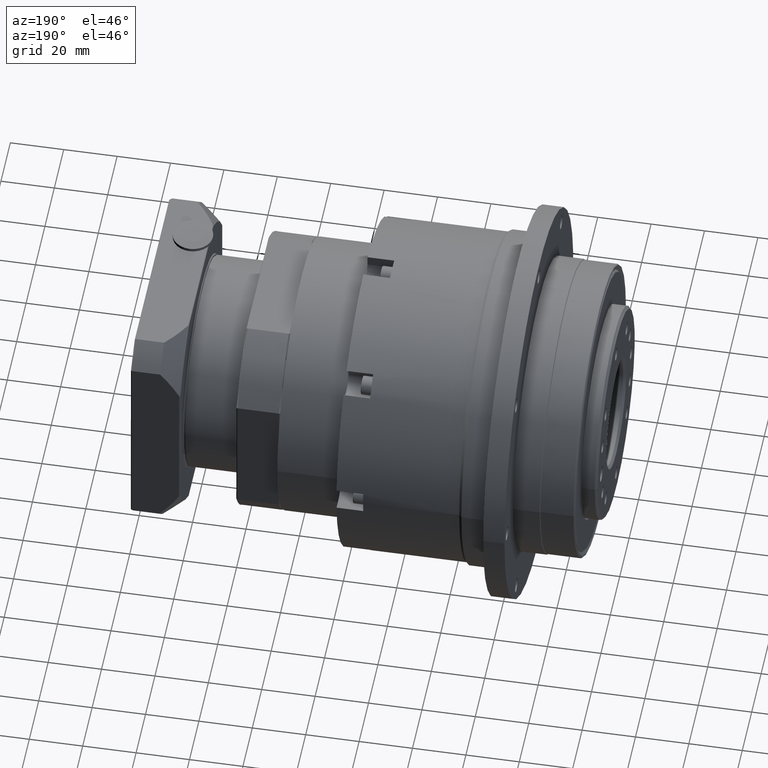
[diagram: clean part render]
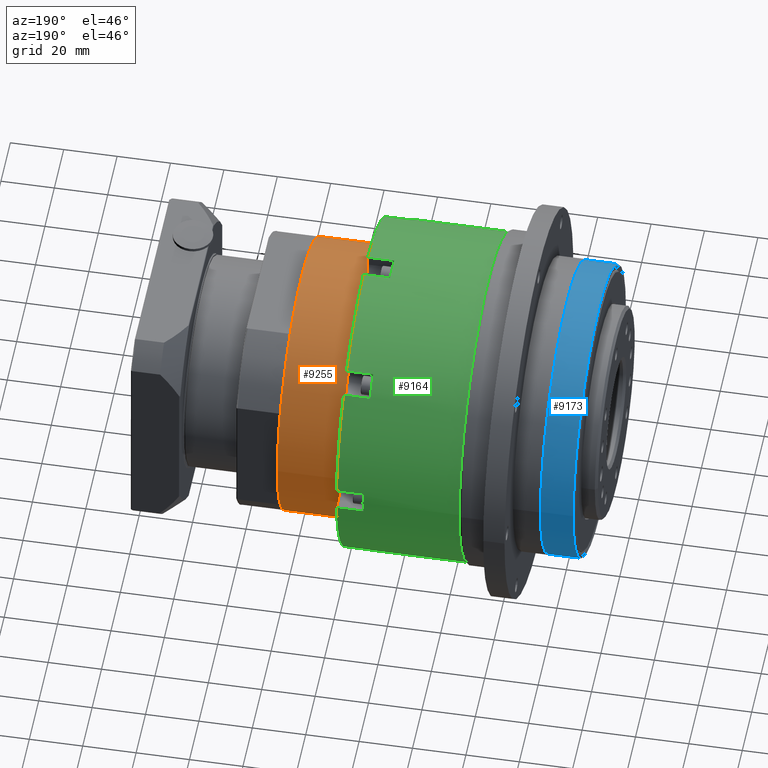
[diagram: same view with three faces highlighted in distinct colors, each labeled with its STEP entity id]
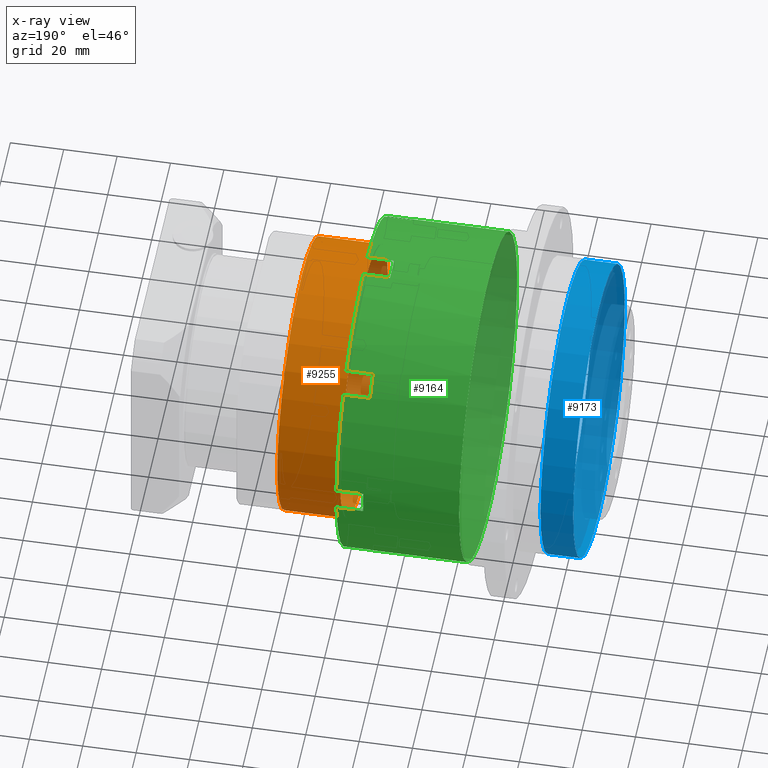
[diagram: x-ray of the same camera — body ghosted, the three highlighted faces saturated]
A machine part, auxiliary view with three faces highlighted in distinct colors.
The next image is the same camera in x-ray (body ghosted, the three faces saturated) — at least one of them is partly hidden behind the body in this view.
Their STEP definitions:

[orange] entity #9255 — the highlighted cylindrical surface (bore or boss wall) has radius 51 mm, axis along (1, -0, 0).
#1797=FACE_BOUND('',#3229,.T.);
#2342=FACE_OUTER_BOUND('',#3228,.T.);
#3228=EDGE_LOOP('',(#7578));
#3229=EDGE_LOOP('',(#7579));
#3791=CIRCLE('',#10123,51.);
#3893=CIRCLE('',#10317,51.);
#4485=VERTEX_POINT('',#15536);
#4619=VERTEX_POINT('',#15928);
#5502=EDGE_CURVE('',#4485,#4485,#3791,.T.);
#5668=EDGE_CURVE('',#4619,#4619,#3893,.T.);
#7578=ORIENTED_EDGE('',*,*,#5502,.F.);
#7579=ORIENTED_EDGE('',*,*,#5668,.F.);
#8269=CYLINDRICAL_SURFACE('',#10316,51.);
#9255=ADVANCED_FACE('',(#2342,#1797),#8269,.T.);
#10123=AXIS2_PLACEMENT_3D('',#15537,#12153,#12154);
#10316=AXIS2_PLACEMENT_3D('',#15927,#12603,#12604);
#10317=AXIS2_PLACEMENT_3D('',#15929,#12605,#12606);
#12153=DIRECTION('center_axis',(1.,-2.70046632271815E-15,1.9707606311247E-16));
#12154=DIRECTION('ref_axis',(1.97271274764041E-16,7.22883173358092E-5,-0.9999999973872));
#12603=DIRECTION('center_axis',(1.,-2.70046632271815E-15,1.9707606311247E-16));
#12604=DIRECTION('ref_axis',(2.70045206936538E-15,0.9999999973872,7.22883173358092E-5));
#12605=DIRECTION('center_axis',(-1.,2.70046632271815E-15,-1.9707606311247E-16));
#12606=DIRECTION('ref_axis',(-2.70045206936538E-15,-0.9999999973872,-7.22883173356255E-5));
#15536=CARTESIAN_POINT('',(0.862257164342749,101.974390526118,19.2707401434766));
#15537=CARTESIAN_POINT('Origin',(0.862257164342612,50.9743906593711,19.2670534392925));
#15927=CARTESIAN_POINT('Origin',(-11.1377428356574,50.9743906593712,19.2670534392925));
#15928=CARTESIAN_POINT('',(-22.6377428356573,101.974390526118,19.2707401434766));
#15929=CARTESIAN_POINT('Origin',(-22.6377428356574,50.9743906593712,19.2670534392925));

[blue] entity #9173 — the highlighted cylindrical surface (bore or boss wall) has radius 54.75 mm, axis along (1, 0, 0).
#1741=FACE_BOUND('',#3091,.T.);
#2260=FACE_OUTER_BOUND('',#3090,.T.);
#3090=EDGE_LOOP('',(#7344));
#3091=EDGE_LOOP('',(#7345));
#3831=CIRCLE('',#10171,54.75);
#3834=CIRCLE('',#10176,54.75);
#4541=VERTEX_POINT('',#15656);
#4544=VERTEX_POINT('',#15664);
#5558=EDGE_CURVE('',#4541,#4541,#3831,.T.);
#5561=EDGE_CURVE('',#4544,#4544,#3834,.T.);
#7344=ORIENTED_EDGE('',*,*,#5558,.F.);
#7345=ORIENTED_EDGE('',*,*,#5561,.F.);
#8235=CYLINDRICAL_SURFACE('',#10175,54.75);
#9173=ADVANCED_FACE('',(#2260,#1741),#8235,.T.);
#10171=AXIS2_PLACEMENT_3D('',#15657,#12265,#12266);
#10175=AXIS2_PLACEMENT_3D('',#15663,#12273,#12274);
#10176=AXIS2_PLACEMENT_3D('',#15665,#12275,#12276);
#12265=DIRECTION('center_axis',(1.,3.88576431534471E-16,1.33663550825114E-15));
#12266=DIRECTION('ref_axis',(1.33660741522239E-15,7.22883173358185E-5,-0.999999997387199));
#12273=DIRECTION('center_axis',(1.,3.88576431534471E-16,1.33663550825114E-15));
#12274=DIRECTION('ref_axis',(-3.88673053650981E-16,0.9999999973872,7.22883173358185E-5));
#12275=DIRECTION('center_axis',(-1.,-3.88576431534471E-16,-1.33663550825114E-15));
#12276=DIRECTION('ref_axis',(3.88673053650981E-16,-0.9999999973872,-7.22883173356348E-5));
#15656=CARTESIAN_POINT('',(-98.3877428356575,105.724390516323,19.2710112246665));
#15657=CARTESIAN_POINT('Origin',(-98.3877428356574,50.9743906593734,19.2670534392924));
#15663=CARTESIAN_POINT('Origin',(-104.762742835657,50.9743906593734,19.2670534392923));
#15664=CARTESIAN_POINT('',(-110.637742835657,105.724390516323,19.2710112246665));
#15665=CARTESIAN_POINT('Origin',(-110.637742835657,50.9743906593734,19.2670534392923));

[green] entity #9164 — the highlighted cylindrical surface (bore or boss wall) has radius 61.5 mm, axis along (1, 0, 0).
#651=LINE('',#15541,#1078);
#652=LINE('',#15545,#1079);
#653=LINE('',#15549,#1080);
#654=LINE('',#15553,#1081);
#655=LINE('',#15557,#1082);
#656=LINE('',#15561,#1083);
#657=LINE('',#15565,#1084);
#658=LINE('',#15569,#1085);
#659=LINE('',#15573,#1086);
#660=LINE('',#15577,#1087);
#661=LINE('',#15581,#1088);
#662=LINE('',#15585,#1089);
#663=LINE('',#15589,#1090);
#664=LINE('',#15593,#1091);
#665=LINE('',#15597,#1092);
#666=LINE('',#15601,#1093);
#1078=VECTOR('',#12157,10.);
#1079=VECTOR('',#12160,10.);
#1080=VECTOR('',#12163,10.);
#1081=VECTOR('',#12166,10.);
#1082=VECTOR('',#12169,10.);
#1083=VECTOR('',#12172,10.);
#1084=VECTOR('',#12175,10.);
#1085=VECTOR('',#12178,10.);
#1086=VECTOR('',#12181,10.);
#1087=VECTOR('',#12184,10.);
#1088=VECTOR('',#12187,10.);
#1089=VECTOR('',#12190,10.);
#1090=VECTOR('',#12193,10.);
#1091=VECTOR('',#12196,10.);
#1092=VECTOR('',#12199,10.);
#1093=VECTOR('',#12202,10.);
#1716=FACE_BOUND('',#3057,.T.);
#2251=FACE_OUTER_BOUND('',#3056,.T.);
#3056=EDGE_LOOP('',(#7279,#7280,#7281,#7282,#7283,#7284,#7285,#7286,#7287,
#7288,#7289,#7290,#7291,#7292,#7293,#7294,#7295,#7296,#7297,#7298,#7299,
#7300,#7301,#7302,#7303,#7304,#7305,#7306,#7307,#7308,#7309,#7310));
#3057=EDGE_LOOP('',(#7311));
#3792=CIRCLE('',#10125,61.5);
#3793=CIRCLE('',#10126,61.5);
#3794=CIRCLE('',#10127,61.5);
#3795=CIRCLE('',#10128,61.5);
#3796=CIRCLE('',#10129,61.5);
#3797=CIRCLE('',#10130,61.5);
#3798=CIRCLE('',#10131,61.5);
#3799=CIRCLE('',#10132,61.5);
#3800=CIRCLE('',#10133,61.5);
#3801=CIRCLE('',#10134,61.5);
#3802=CIRCLE('',#10135,61.5);
#3803=CIRCLE('',#10136,61.5);
#3804=CIRCLE('',#10137,61.5);
#3805=CIRCLE('',#10138,61.5);
#3806=CIRCLE('',#10139,61.5);
#3807=CIRCLE('',#10140,61.5);
#3808=CIRCLE('',#10141,61.5);
#4486=VERTEX_POINT('',#15539);
#4487=VERTEX_POINT('',#15540);
#4488=VERTEX_POINT('',#15542);
#4489=VERTEX_POINT('',#15544);
#4490=VERTEX_POINT('',#15546);
#4491=VERTEX_POINT('',#15548);
#4492=VERTEX_POINT('',#15550);
#4493=VERTEX_POINT('',#15552);
#4494=VERTEX_POINT('',#15554);
#4495=VERTEX_POINT('',#15556);
#4496=VERTEX_POINT('',#15558);
#4497=VERTEX_POINT('',#15560);
#4498=VERTEX_POINT('',#15562);
#4499=VERTEX_POINT('',#15564);
#4500=VERTEX_POINT('',#15566);
#4501=VERTEX_POINT('',#15568);
#4502=VERTEX_POINT('',#15570);
#4503=VERTEX_POINT('',#15572);
#4504=VERTEX_POINT('',#15574);
#4505=VERTEX_POINT('',#15576);
#4506=VERTEX_POINT('',#15578);
#4507=VERTEX_POINT('',#15580);
#4508=VERTEX_POINT('',#15582);
#4509=VERTEX_POINT('',#15584);
#4510=VERTEX_POINT('',#15586);
#4511=VERTEX_POINT('',#15588);
#4512=VERTEX_POINT('',#15590);
#4513=VERTEX_POINT('',#15592);
#4514=VERTEX_POINT('',#15594);
#4515=VERTEX_POINT('',#15596);
#4516=VERTEX_POINT('',#15598);
#4517=VERTEX_POINT('',#15600);
#4518=VERTEX_POINT('',#15603);
#5503=EDGE_CURVE('',#4486,#4487,#651,.T.);
#5504=EDGE_CURVE('',#4488,#4487,#3792,.T.);
#5505=EDGE_CURVE('',#4488,#4489,#652,.T.);
#5506=EDGE_CURVE('',#4489,#4490,#3793,.T.);
#5507=EDGE_CURVE('',#4490,#4491,#653,.T.);
#5508=EDGE_CURVE('',#4492,#4491,#3794,.T.);
#5509=EDGE_CURVE('',#4492,#4493,#654,.T.);
#5510=EDGE_CURVE('',#4493,#4494,#3795,.T.);
#5511=EDGE_CURVE('',#4494,#4495,#655,.T.);
#5512=EDGE_CURVE('',#4496,#4495,#3796,.T.);
#5513=EDGE_CURVE('',#4496,#4497,#656,.T.);
#5514=EDGE_CURVE('',#4497,#4498,#3797,.T.);
#5515=EDGE_CURVE('',#4498,#4499,#657,.T.);
#5516=EDGE_CURVE('',#4500,#4499,#3798,.T.);
#5517=EDGE_CURVE('',#4500,#4501,#658,.T.);
#5518=EDGE_CURVE('',#4501,#4502,#3799,.T.);
#5519=EDGE_CURVE('',#4502,#4503,#659,.T.);
#5520=EDGE_CURVE('',#4504,#4503,#3800,.T.);
#5521=EDGE_CURVE('',#4504,#4505,#660,.T.);
#5522=EDGE_CURVE('',#4505,#4506,#3801,.T.);
#5523=EDGE_CURVE('',#4506,#4507,#661,.T.);
#5524=EDGE_CURVE('',#4508,#4507,#3802,.T.);
#5525=EDGE_CURVE('',#4508,#4509,#662,.T.);
#5526=EDGE_CURVE('',#4509,#4510,#3803,.T.);
#5527=EDGE_CURVE('',#4510,#4511,#663,.T.);
#5528=EDGE_CURVE('',#4512,#4511,#3804,.T.);
#5529=EDGE_CURVE('',#4512,#4513,#664,.T.);
#5530=EDGE_CURVE('',#4513,#4514,#3805,.T.);
#5531=EDGE_CURVE('',#4514,#4515,#665,.T.);
#5532=EDGE_CURVE('',#4516,#4515,#3806,.T.);
#5533=EDGE_CURVE('',#4516,#4517,#666,.T.);
#5534=EDGE_CURVE('',#4517,#4486,#3807,.T.);
#5535=EDGE_CURVE('',#4518,#4518,#3808,.T.);
#7279=ORIENTED_EDGE('',*,*,#5503,.T.);
#7280=ORIENTED_EDGE('',*,*,#5504,.F.);
#7281=ORIENTED_EDGE('',*,*,#5505,.T.);
#7282=ORIENTED_EDGE('',*,*,#5506,.T.);
#7283=ORIENTED_EDGE('',*,*,#5507,.T.);
#7284=ORIENTED_EDGE('',*,*,#5508,.F.);
#7285=ORIENTED_EDGE('',*,*,#5509,.T.);
#7286=ORIENTED_EDGE('',*,*,#5510,.T.);
#7287=ORIENTED_EDGE('',*,*,#5511,.T.);
#7288=ORIENTED_EDGE('',*,*,#5512,.F.);
#7289=ORIENTED_EDGE('',*,*,#5513,.T.);
#7290=ORIENTED_EDGE('',*,*,#5514,.T.);
#7291=ORIENTED_EDGE('',*,*,#5515,.T.);
#7292=ORIENTED_EDGE('',*,*,#5516,.F.);
#7293=ORIENTED_EDGE('',*,*,#5517,.T.);
#7294=ORIENTED_EDGE('',*,*,#5518,.T.);
#7295=ORIENTED_EDGE('',*,*,#5519,.T.);
#7296=ORIENTED_EDGE('',*,*,#5520,.F.);
#7297=ORIENTED_EDGE('',*,*,#5521,.T.);
#7298=ORIENTED_EDGE('',*,*,#5522,.T.);
#7299=ORIENTED_EDGE('',*,*,#5523,.T.);
#7300=ORIENTED_EDGE('',*,*,#5524,.F.);
#7301=ORIENTED_EDGE('',*,*,#5525,.T.);
#7302=ORIENTED_EDGE('',*,*,#5526,.T.);
#7303=ORIENTED_EDGE('',*,*,#5527,.T.);
#7304=ORIENTED_EDGE('',*,*,#5528,.F.);
#7305=ORIENTED_EDGE('',*,*,#5529,.T.);
#7306=ORIENTED_EDGE('',*,*,#5530,.T.);
#7307=ORIENTED_EDGE('',*,*,#5531,.T.);
#7308=ORIENTED_EDGE('',*,*,#5532,.F.);
#7309=ORIENTED_EDGE('',*,*,#5533,.T.);
#7310=ORIENTED_EDGE('',*,*,#5534,.T.);
#7311=ORIENTED_EDGE('',*,*,#5535,.T.);
#8231=CYLINDRICAL_SURFACE('',#10124,61.5);
#9164=ADVANCED_FACE('',(#2251,#1716),#8231,.T.);
#10124=AXIS2_PLACEMENT_3D('',#15538,#12155,#12156);
#10125=AXIS2_PLACEMENT_3D('',#15543,#12158,#12159);
#10126=AXIS2_PLACEMENT_3D('',#15547,#12161,#12162);
#10127=AXIS2_PLACEMENT_3D('',#15551,#12164,#12165);
#10128=AXIS2_PLACEMENT_3D('',#15555,#12167,#12168);
#10129=AXIS2_PLACEMENT_3D('',#15559,#12170,#12171);
#10130=AXIS2_PLACEMENT_3D('',#15563,#12173,#12174);
#10131=AXIS2_PLACEMENT_3D('',#15567,#12176,#12177);
#10132=AXIS2_PLACEMENT_3D('',#15571,#12179,#12180);
#10133=AXIS2_PLACEMENT_3D('',#15575,#12182,#12183);
#10134=AXIS2_PLACEMENT_3D('',#15579,#12185,#12186);
#10135=AXIS2_PLACEMENT_3D('',#15583,#12188,#12189);
#10136=AXIS2_PLACEMENT_3D('',#15587,#12191,#12192);
#10137=AXIS2_PLACEMENT_3D('',#15591,#12194,#12195);
#10138=AXIS2_PLACEMENT_3D('',#15595,#12197,#12198);
#10139=AXIS2_PLACEMENT_3D('',#15599,#12200,#12201);
#10140=AXIS2_PLACEMENT_3D('',#15602,#12203,#12204);
#10141=AXIS2_PLACEMENT_3D('',#15604,#12205,#12206);
#12155=DIRECTION('center_axis',(1.,3.88576431534471E-16,1.33663550825114E-15));
#12156=DIRECTION('ref_axis',(-3.88673053650981E-16,0.9999999973872,7.22883173358185E-5));
#12157=DIRECTION('',(1.,-2.70046632271815E-15,1.9707606311247E-16));
#12158=DIRECTION('center_axis',(1.,-2.70046632271815E-15,1.9707606311247E-16));
#12159=DIRECTION('ref_axis',(1.97271274764041E-16,7.22883173358092E-5,-0.9999999973872));
#12160=DIRECTION('',(-1.,2.70046632271815E-15,-1.9707606311247E-16));
#12161=DIRECTION('center_axis',(-1.,2.70046632271815E-15,-1.9707606311247E-16));
#12162=DIRECTION('ref_axis',(2.70045206936538E-15,0.9999999973872,7.22883173358092E-5));
#12163=DIRECTION('',(1.,-2.70046632271815E-15,1.9707606311247E-16));
#12164=DIRECTION('center_axis',(1.,-2.70046632271815E-15,1.9707606311247E-16));
#12165=DIRECTION('ref_axis',(1.97271274764041E-16,7.22883173358092E-5,-0.9999999973872));
#12166=DIRECTION('',(-1.,2.70046632271815E-15,-1.9707606311247E-16));
#12167=DIRECTION('center_axis',(-1.,2.70046632271815E-15,-1.9707606311247E-16));
#12168=DIRECTION('ref_axis',(2.70045206936538E-15,0.9999999973872,7.22883173358092E-5));
#12169=DIRECTION('',(1.,-2.70046632271815E-15,1.9707606311247E-16));
#12170=DIRECTION('center_axis',(1.,-2.70046632271815E-15,1.9707606311247E-16));
#12171=DIRECTION('ref_axis',(1.97271274764041E-16,7.22883173358092E-5,-0.9999999973872));
#12172=DIRECTION('',(-1.,2.70046632271815E-15,-1.9707606311247E-16));
#12173=DIRECTION('center_axis',(-1.,2.70046632271815E-15,-1.9707606311247E-16));
#12174=DIRECTION('ref_axis',(2.70045206936538E-15,0.9999999973872,7.22883173358092E-5));
#12175=DIRECTION('',(1.,-2.70046632271815E-15,1.9707606311247E-16));
#12176=DIRECTION('center_axis',(1.,-2.70046632271815E-15,1.9707606311247E-16));
#12177=DIRECTION('ref_axis',(1.97271274764041E-16,7.22883173358092E-5,-0.9999999973872));
#12178=DIRECTION('',(-1.,2.70046632271815E-15,-1.9707606311247E-16));
#12179=DIRECTION('center_axis',(-1.,2.70046632271815E-15,-1.9707606311247E-16));
#12180=DIRECTION('ref_axis',(2.70045206936538E-15,0.9999999973872,7.22883173358092E-5));
#12181=DIRECTION('',(1.,-2.70046632271815E-15,1.9707606311247E-16));
#12182=DIRECTION('center_axis',(1.,-2.70046632271815E-15,1.9707606311247E-16));
#12183=DIRECTION('ref_axis',(1.97271274764041E-16,7.22883173358092E-5,-0.9999999973872));
#12184=DIRECTION('',(-1.,2.70046632271815E-15,-1.9707606311247E-16));
#12185=DIRECTION('center_axis',(-1.,2.70046632271815E-15,-1.9707606311247E-16));
#12186=DIRECTION('ref_axis',(2.70045206936538E-15,0.9999999973872,7.22883173358092E-5));
#12187=DIRECTION('',(1.,-2.70046632271815E-15,1.9707606311247E-16));
#12188=DIRECTION('center_axis',(1.,-2.70046632271815E-15,1.9707606311247E-16));
#12189=DIRECTION('ref_axis',(1.97271274764041E-16,7.22883173358092E-5,-0.9999999973872));
#12190=DIRECTION('',(-1.,2.70046632271815E-15,-1.9707606311247E-16));
#12191=DIRECTION('center_axis',(-1.,2.70046632271815E-15,-1.9707606311247E-16));
#12192=DIRECTION('ref_axis',(2.70045206936538E-15,0.9999999973872,7.22883173358092E-5));
#12193=DIRECTION('',(1.,-2.70046632271815E-15,1.9707606311247E-16));
#12194=DIRECTION('center_axis',(1.,-2.70046632271815E-15,1.9707606311247E-16));
#12195=DIRECTION('ref_axis',(1.97271274764041E-16,7.22883173358092E-5,-0.9999999973872));
#12196=DIRECTION('',(-1.,2.70046632271815E-15,-1.9707606311247E-16));
#12197=DIRECTION('center_axis',(-1.,2.70046632271815E-15,-1.9707606311247E-16));
#12198=DIRECTION('ref_axis',(2.70045206936538E-15,0.9999999973872,7.22883173358092E-5));
#12199=DIRECTION('',(1.,-2.70046632271815E-15,1.9707606311247E-16));
#12200=DIRECTION('center_axis',(1.,-2.70046632271815E-15,1.9707606311247E-16));
#12201=DIRECTION('ref_axis',(1.97271274764041E-16,7.22883173358092E-5,-0.9999999973872));
#12202=DIRECTION('',(-1.,2.70046632271815E-15,-1.9707606311247E-16));
#12203=DIRECTION('center_axis',(-1.,2.70046632271815E-15,-1.9707606311247E-16));
#12204=DIRECTION('ref_axis',(2.70045206936538E-15,0.9999999973872,7.22883173358092E-5));
#12205=DIRECTION('center_axis',(1.,3.88576431534471E-16,1.33663550825114E-15));
#12206=DIRECTION('ref_axis',(1.33660741522239E-15,7.22883173358185E-5,-0.9999999973872));
#15538=CARTESIAN_POINT('Origin',(-55.6377428356574,50.9743906593734,19.2670534392924));
#15539=CARTESIAN_POINT('',(-33.1377428356573,91.1662721236891,-27.282518678593));
#15540=CARTESIAN_POINT('',(-23.1377428356573,91.1662721236891,-27.282518678593));
#15541=CARTESIAN_POINT('',(-32.6377428356573,91.1662721236891,-27.282518678593));
#15542=CARTESIAN_POINT('',(-23.1377428356574,55.478824462032,-42.0677660038057));
#15543=CARTESIAN_POINT('Origin',(-23.1377428356574,50.9743906593712,19.2670534392925));
#15544=CARTESIAN_POINT('',(-33.1377428356574,55.478824462032,-42.0677660038057));
#15545=CARTESIAN_POINT('',(-32.6377428356574,55.478824462032,-42.0677660038057));
#15546=CARTESIAN_POINT('',(-33.1377428356574,46.4788244855472,-42.0684165986617));
#15547=CARTESIAN_POINT('Origin',(-33.1377428356574,50.9743906593712,19.2670534392925));
#15548=CARTESIAN_POINT('',(-23.1377428356574,46.4788244855472,-42.0684165986617));
#15549=CARTESIAN_POINT('',(-32.6377428356574,46.4788244855472,-42.0684165986617));
#15550=CARTESIAN_POINT('',(-23.1377428356575,10.7892395955714,-27.2883289990421));
#15551=CARTESIAN_POINT('Origin',(-23.1377428356574,50.9743906593712,19.2670534392925));
#15552=CARTESIAN_POINT('',(-33.1377428356575,10.7892395955714,-27.2883289990421));
#15553=CARTESIAN_POINT('',(-32.6377428356575,10.7892395955714,-27.2883289990421));
#15554=CARTESIAN_POINT('',(-33.1377428356575,4.42481854148573,-20.9248280250254));
#15555=CARTESIAN_POINT('Origin',(-33.1377428356574,50.9743906593712,19.2670534392925));
#15556=CARTESIAN_POINT('',(-23.1377428356575,4.4248185414857,-20.9248280250254));
#15557=CARTESIAN_POINT('',(-32.6377428356575,4.42481854148574,-20.9248280250254));
#15558=CARTESIAN_POINT('',(-23.1377428356576,-10.3604287837269,14.7626196366317));
#15559=CARTESIAN_POINT('Origin',(-23.1377428356574,50.9743906593712,19.2670534392925));
#15560=CARTESIAN_POINT('',(-33.1377428356576,-10.3604287837269,14.7626196366317));
#15561=CARTESIAN_POINT('',(-32.6377428356576,-10.3604287837269,14.7626196366316));
#15562=CARTESIAN_POINT('',(-33.1377428356576,-10.3610793785829,23.7626196131165));
#15563=CARTESIAN_POINT('Origin',(-33.1377428356574,50.9743906593712,19.2670534392925));
#15564=CARTESIAN_POINT('',(-23.1377428356576,-10.361079378583,23.7626196131165));
#15565=CARTESIAN_POINT('',(-32.6377428356576,-10.3610793785829,23.7626196131165));
#15566=CARTESIAN_POINT('',(-23.1377428356575,4.41900822103664,59.4522045030923));
#15567=CARTESIAN_POINT('Origin',(-23.1377428356574,50.9743906593712,19.2670534392925));
#15568=CARTESIAN_POINT('',(-33.1377428356575,4.41900822103666,59.4522045030923));
#15569=CARTESIAN_POINT('',(-32.6377428356575,4.41900822103666,59.4522045030923));
#15570=CARTESIAN_POINT('',(-33.1377428356575,10.7825091950533,65.816625557178));
#15571=CARTESIAN_POINT('Origin',(-33.1377428356574,50.9743906593712,19.2670534392925));
#15572=CARTESIAN_POINT('',(-23.1377428356575,10.7825091950533,65.816625557178));
#15573=CARTESIAN_POINT('',(-32.6377428356575,10.7825091950533,65.816625557178));
#15574=CARTESIAN_POINT('',(-23.1377428356574,46.4699568567104,80.6018728823906));
#15575=CARTESIAN_POINT('Origin',(-23.1377428356574,50.9743906593712,19.2670534392925));
#15576=CARTESIAN_POINT('',(-33.1377428356574,46.4699568567104,80.6018728823906));
#15577=CARTESIAN_POINT('',(-32.6377428356574,46.4699568567104,80.6018728823906));
#15578=CARTESIAN_POINT('',(-33.1377428356574,55.4699568331952,80.6025234772466));
#15579=CARTESIAN_POINT('Origin',(-33.1377428356574,50.9743906593712,19.2670534392925));
#15580=CARTESIAN_POINT('',(-23.1377428356574,55.4699568331952,80.6025234772466));
#15581=CARTESIAN_POINT('',(-32.6377428356574,55.4699568331952,80.6025234772466));
#15582=CARTESIAN_POINT('',(-23.1377428356573,91.159541723171,65.822435877627));
#15583=CARTESIAN_POINT('Origin',(-23.1377428356574,50.9743906593712,19.2670534392925));
#15584=CARTESIAN_POINT('',(-33.1377428356573,91.159541723171,65.822435877627));
#15585=CARTESIAN_POINT('',(-32.6377428356573,91.159541723171,65.822435877627));
#15586=CARTESIAN_POINT('',(-33.1377428356573,97.5239627772567,59.4589349036104));
#15587=CARTESIAN_POINT('Origin',(-33.1377428356574,50.9743906593712,19.2670534392925));
#15588=CARTESIAN_POINT('',(-23.1377428356573,97.5239627772567,59.4589349036104));
#15589=CARTESIAN_POINT('',(-32.6377428356573,97.5239627772567,59.4589349036104));
#15590=CARTESIAN_POINT('',(-23.1377428356572,112.309210102469,23.7714872419533));
#15591=CARTESIAN_POINT('Origin',(-23.1377428356574,50.9743906593712,19.2670534392925));
#15592=CARTESIAN_POINT('',(-33.1377428356572,112.309210102469,23.7714872419533));
#15593=CARTESIAN_POINT('',(-32.6377428356572,112.309210102469,23.7714872419533));
#15594=CARTESIAN_POINT('',(-33.1377428356572,112.309860697325,14.7714872654685));
#15595=CARTESIAN_POINT('Origin',(-33.1377428356574,50.9743906593712,19.2670534392925));
#15596=CARTESIAN_POINT('',(-23.1377428356572,112.309860697325,14.7714872654685));
#15597=CARTESIAN_POINT('',(-32.6377428356572,112.309860697325,14.7714872654685));
#15598=CARTESIAN_POINT('',(-23.1377428356573,97.5297730977057,-20.9180976245074));
#15599=CARTESIAN_POINT('Origin',(-23.1377428356574,50.9743906593712,19.2670534392925));
#15600=CARTESIAN_POINT('',(-33.1377428356573,97.5297730977058,-20.9180976245074));
#15601=CARTESIAN_POINT('',(-32.6377428356573,97.5297730977057,-20.9180976245074));
#15602=CARTESIAN_POINT('Origin',(-33.1377428356574,50.9743906593712,19.2670534392925));
#15603=CARTESIAN_POINT('',(-69.1377428356574,112.474390498686,19.2714991708085));
#15604=CARTESIAN_POINT('Origin',(-69.1377428356574,50.9743906593734,19.2670534392924));